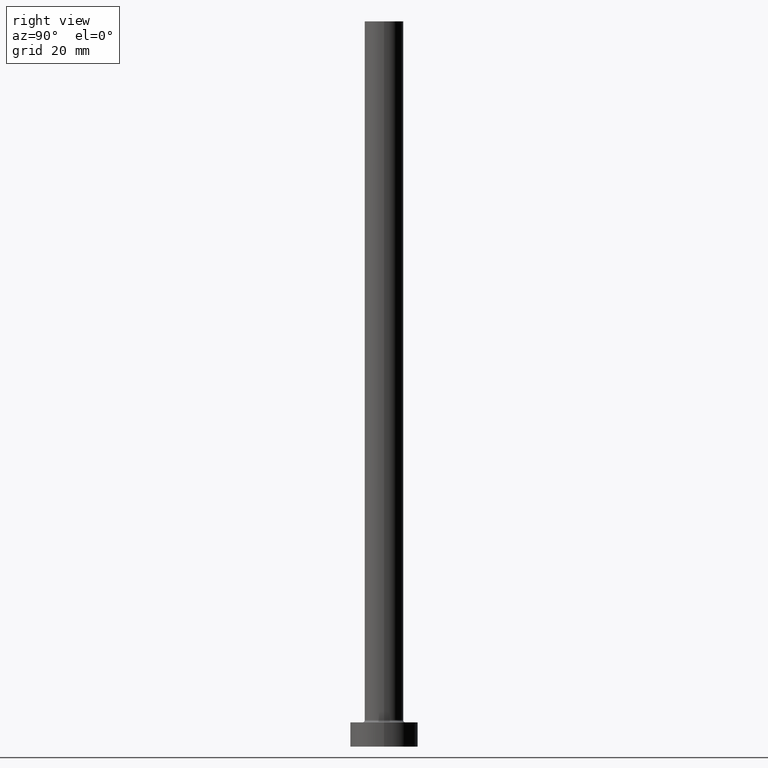
[diagram: clean part render]
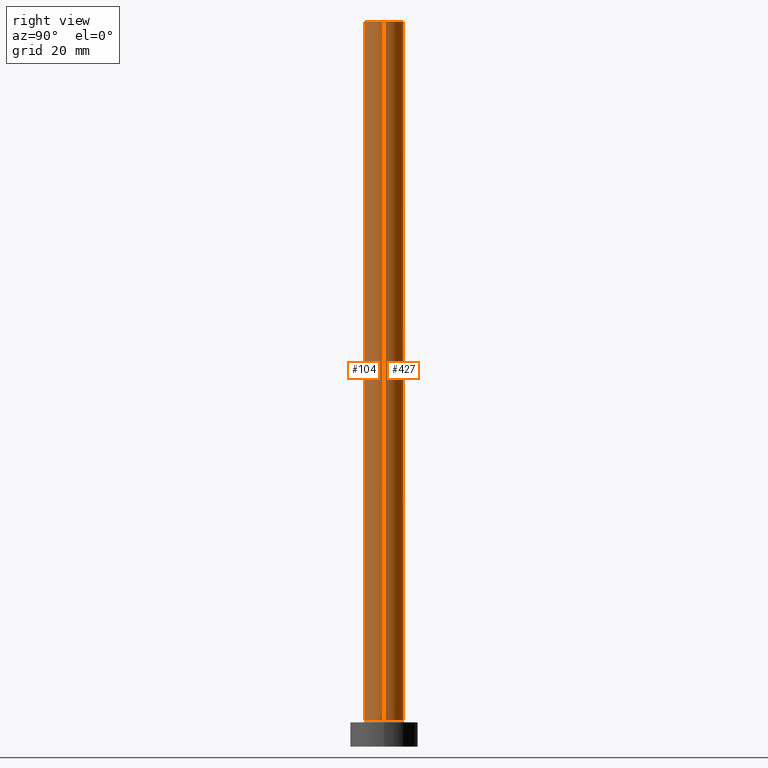
[diagram: same view with one multi-face feature highlighted, each face labeled with its STEP entity id]
A machine part, right view. The highlighted faces form ONE feature: a constant-radius fillet chain: 2 tangent blend faces with common blend radius 4 mm. The faces share edges in the B-rep.
Their STEP definitions:
[1] entity #104 (Cylinder):
#7 = DIRECTION ( 'NONE',  ( -0.000000000000000000, -0.000000000000000000, -1.000000000000000000 ) ) ;
#11 = CARTESIAN_POINT ( 'NONE',  ( 0.000000000000000000, 0.000000000000000000, 150.0000000000000000 ) ) ;
#19 = CIRCLE ( 'NONE', #209, 4.000000000000000000 ) ;
#27 = DIRECTION ( 'NONE',  ( 0.000000000000000000, 0.000000000000000000, 1.000000000000000000 ) ) ;
#35 = DIRECTION ( 'NONE',  ( 1.000000000000000000, 0.000000000000000000, 0.000000000000000000 ) ) ;
#79 = EDGE_CURVE ( 'NONE', #284, #130, #255, .T. ) ;
#82 = DIRECTION ( 'NONE',  ( -0.000000000000000000, -0.000000000000000000, -1.000000000000000000 ) ) ;
#83 = LINE ( 'NONE', #118, #262 ) ;
#94 = ORIENTED_EDGE ( 'NONE', *, *, #210, .F. ) ;
#99 = EDGE_LOOP ( 'NONE', ( #421, #94, #258, #157 ) ) ;
#104 = ADVANCED_FACE ( 'NONE', ( #362 ), #243, .T. ) ;
#108 = CARTESIAN_POINT ( 'NONE',  ( 4.000000000000000000, 4.898587196589412829E-16, 5.500000000000005329 ) ) ;
#111 = CIRCLE ( 'NONE', #288, 4.000000000000000000 ) ;
#118 = CARTESIAN_POINT ( 'NONE',  ( 4.000000000000000000, 4.898587196589412829E-16, 150.0000000000000000 ) ) ;
#130 = VERTEX_POINT ( 'NONE', #172 ) ;
#135 = VERTEX_POINT ( 'NONE', #108 ) ;
#153 = CARTESIAN_POINT ( 'NONE',  ( -4.000000000000000000, 0.000000000000000000, 150.0000000000000000 ) ) ;
#157 = ORIENTED_EDGE ( 'NONE', *, *, #442, .T. ) ;
#172 = CARTESIAN_POINT ( 'NONE',  ( -4.000000000000000000, 0.000000000000000000, 5.500000000000005329 ) ) ;
#194 = CARTESIAN_POINT ( 'NONE',  ( 0.000000000000000000, 0.000000000000000000, 5.500000000000005329 ) ) ;
#201 = CARTESIAN_POINT ( 'NONE',  ( 0.000000000000000000, 0.000000000000000000, 150.0000000000000000 ) ) ;
#209 = AXIS2_PLACEMENT_3D ( 'NONE', #194, #27, #232 ) ;
#210 = EDGE_CURVE ( 'NONE', #284, #340, #111, .T. ) ;
#232 = DIRECTION ( 'NONE',  ( 1.000000000000000000, 0.000000000000000000, 0.000000000000000000 ) ) ;
#243 = CYLINDRICAL_SURFACE ( 'NONE', #280, 4.000000000000000000 ) ;
#253 = DIRECTION ( 'NONE',  ( -0.000000000000000000, -0.000000000000000000, -1.000000000000000000 ) ) ;
#255 = LINE ( 'NONE', #153, #424 ) ;
#258 = ORIENTED_EDGE ( 'NONE', *, *, #79, .T. ) ;
#262 = VECTOR ( 'NONE', #253, 1000.000000000000000 ) ;
#277 = EDGE_CURVE ( 'NONE', #340, #135, #83, .T. ) ;
#280 = AXIS2_PLACEMENT_3D ( 'NONE', #11, #7, #393 ) ;
#284 = VERTEX_POINT ( 'NONE', #338 ) ;
#288 = AXIS2_PLACEMENT_3D ( 'NONE', #201, #356, #35 ) ;
#338 = CARTESIAN_POINT ( 'NONE',  ( -4.000000000000000000, 0.000000000000000000, 150.0000000000000000 ) ) ;
#340 = VERTEX_POINT ( 'NONE', #369 ) ;
#356 = DIRECTION ( 'NONE',  ( 0.000000000000000000, 0.000000000000000000, 1.000000000000000000 ) ) ;
#362 = FACE_OUTER_BOUND ( 'NONE', #99, .T. ) ;
#369 = CARTESIAN_POINT ( 'NONE',  ( 4.000000000000000000, 4.898587196589412829E-16, 150.0000000000000000 ) ) ;
#393 = DIRECTION ( 'NONE',  ( -1.000000000000000000, 0.000000000000000000, 0.000000000000000000 ) ) ;
#421 = ORIENTED_EDGE ( 'NONE', *, *, #277, .F. ) ;
#424 = VECTOR ( 'NONE', #82, 1000.000000000000000 ) ;
#442 = EDGE_CURVE ( 'NONE', #130, #135, #19, .T. ) ;
[2] entity #427 (Cylinder):
#24 = ORIENTED_EDGE ( 'NONE', *, *, #300, .T. ) ;
#59 = DIRECTION ( 'NONE',  ( -1.000000000000000000, 0.000000000000000000, 0.000000000000000000 ) ) ;
#79 = EDGE_CURVE ( 'NONE', #284, #130, #255, .T. ) ;
#82 = DIRECTION ( 'NONE',  ( -0.000000000000000000, -0.000000000000000000, -1.000000000000000000 ) ) ;
#83 = LINE ( 'NONE', #118, #262 ) ;
#98 = EDGE_LOOP ( 'NONE', ( #440, #226, #24, #401 ) ) ;
#108 = CARTESIAN_POINT ( 'NONE',  ( 4.000000000000000000, 4.898587196589412829E-16, 5.500000000000005329 ) ) ;
#114 = CARTESIAN_POINT ( 'NONE',  ( 0.000000000000000000, 0.000000000000000000, 150.0000000000000000 ) ) ;
#118 = CARTESIAN_POINT ( 'NONE',  ( 4.000000000000000000, 4.898587196589412829E-16, 150.0000000000000000 ) ) ;
#120 = DIRECTION ( 'NONE',  ( 0.000000000000000000, 0.000000000000000000, 1.000000000000000000 ) ) ;
#130 = VERTEX_POINT ( 'NONE', #172 ) ;
#135 = VERTEX_POINT ( 'NONE', #108 ) ;
#153 = CARTESIAN_POINT ( 'NONE',  ( -4.000000000000000000, 0.000000000000000000, 150.0000000000000000 ) ) ;
#172 = CARTESIAN_POINT ( 'NONE',  ( -4.000000000000000000, 0.000000000000000000, 5.500000000000005329 ) ) ;
#180 = DIRECTION ( 'NONE',  ( 0.000000000000000000, 0.000000000000000000, 1.000000000000000000 ) ) ;
#226 = ORIENTED_EDGE ( 'NONE', *, *, #277, .T. ) ;
#230 = EDGE_CURVE ( 'NONE', #340, #284, #372, .T. ) ;
#253 = DIRECTION ( 'NONE',  ( -0.000000000000000000, -0.000000000000000000, -1.000000000000000000 ) ) ;
#255 = LINE ( 'NONE', #153, #424 ) ;
#256 = DIRECTION ( 'NONE',  ( 1.000000000000000000, 0.000000000000000000, 0.000000000000000000 ) ) ;
#262 = VECTOR ( 'NONE', #253, 1000.000000000000000 ) ;
#273 = FACE_OUTER_BOUND ( 'NONE', #98, .T. ) ;
#277 = EDGE_CURVE ( 'NONE', #340, #135, #83, .T. ) ;
#284 = VERTEX_POINT ( 'NONE', #338 ) ;
#290 = DIRECTION ( 'NONE',  ( 1.000000000000000000, 0.000000000000000000, 0.000000000000000000 ) ) ;
#295 = AXIS2_PLACEMENT_3D ( 'NONE', #400, #180, #256 ) ;
#300 = EDGE_CURVE ( 'NONE', #135, #130, #306, .T. ) ;
#306 = CIRCLE ( 'NONE', #295, 4.000000000000000000 ) ;
#308 = CYLINDRICAL_SURFACE ( 'NONE', #358, 4.000000000000000000 ) ;
#338 = CARTESIAN_POINT ( 'NONE',  ( -4.000000000000000000, 0.000000000000000000, 150.0000000000000000 ) ) ;
#340 = VERTEX_POINT ( 'NONE', #369 ) ;
#358 = AXIS2_PLACEMENT_3D ( 'NONE', #460, #455, #59 ) ;
#369 = CARTESIAN_POINT ( 'NONE',  ( 4.000000000000000000, 4.898587196589412829E-16, 150.0000000000000000 ) ) ;
#372 = CIRCLE ( 'NONE', #438, 4.000000000000000000 ) ;
#400 = CARTESIAN_POINT ( 'NONE',  ( 0.000000000000000000, 0.000000000000000000, 5.500000000000005329 ) ) ;
#401 = ORIENTED_EDGE ( 'NONE', *, *, #79, .F. ) ;
#424 = VECTOR ( 'NONE', #82, 1000.000000000000000 ) ;
#427 = ADVANCED_FACE ( 'NONE', ( #273 ), #308, .T. ) ;
#438 = AXIS2_PLACEMENT_3D ( 'NONE', #114, #120, #290 ) ;
#440 = ORIENTED_EDGE ( 'NONE', *, *, #230, .F. ) ;
#455 = DIRECTION ( 'NONE',  ( -0.000000000000000000, -0.000000000000000000, -1.000000000000000000 ) ) ;
#460 = CARTESIAN_POINT ( 'NONE',  ( 0.000000000000000000, 0.000000000000000000, 150.0000000000000000 ) ) ;